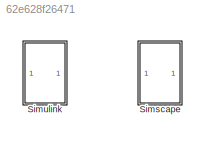
MODEL slx_62e628f26471
KIND model
CONFIG AbsTol = auto
CONFIG EnableMultiTasking = off
CONFIG FixedStep = auto
CONFIG MaxStep = 0.001
CONFIG MinStep = auto
CONFIG RelTol = 1e-3
CONFIG SampleTimeConstraint = Unconstrained
CONFIG SolverName = VariableStepAuto
CONFIG StartTime = 0.0
CONFIG StopTime = 10.0
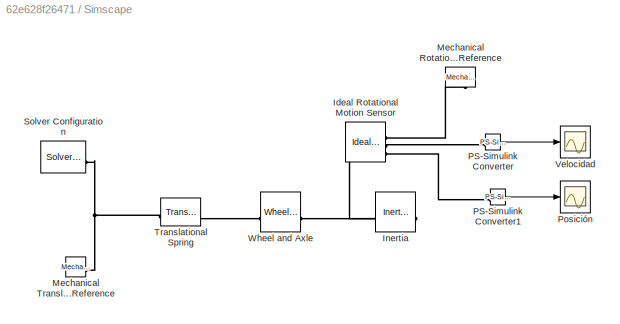
BLOCK [SubSystem] Simscape
BLOCK [Reference] Simscape/Ideal Rotational Motion Sensor  REF=fl_lib/Mechanical/Mechanical Sensors/Ideal Rotational
Motion Sensor
  SourceBlock = fl_lib/Mechanical/Mechanical Sensors/Ideal Rotational\nMotion Sensor
  SourceType = Ideal Rotational\nMotion Sensor
BLOCK [Reference] Simscape/Inertia  REF=fl_lib/Mechanical/Rotational Elements/Inertia
  NameLocation = top
  SourceBlock = fl_lib/Mechanical/Rotational Elements/Inertia
  SourceType = Inertia
BLOCK [Reference] Simscape/Mechanical Rotational Reference  REF=fl_lib/Mechanical/Rotational Elements/Mechanical
Rotational Reference
  NameLocation = left
  SourceBlock = fl_lib/Mechanical/Rotational Elements/Mechanical\nRotational Reference
  SourceType = Mechanical\nRotational Reference
BLOCK [Reference] Simscape/Mechanical Translational Reference  REF=fl_lib/Mechanical/Translational
Elements/Mechanical
Translational
Reference
  SourceBlock = fl_lib/Mechanical/Translational\nElements/Mechanical\nTranslational\nReference
  SourceType = Mechanical\nTranslational\nReference
BLOCK [Reference] Simscape/PS-Simulink Converter  REF=nesl_utility/PS-Simulink
Converter
  SourceBlock = nesl_utility/PS-Simulink\nConverter
  SourceType = PS-Simulink\nConverter
BLOCK [Reference] Simscape/PS-Simulink Converter1  REF=nesl_utility/PS-Simulink
Converter
  SourceBlock = nesl_utility/PS-Simulink\nConverter
  SourceType = PS-Simulink\nConverter
BLOCK [Scope] Simscape/Posición
  Floating = off
  NumInputPorts = 1
  ScopeSpecificationString = Simulink.scopes.TimeScopeBlockCfg('CurrentConfiguration', extmgr.ConfigurationSet(extmgr.Configuration('Core','General UI',true),extmgr.Configuration('Core','Source UI',true),extmgr.Configuration('Sources','WiredSimulink',true,'DataLoggingVariableName','ScopeData2'),extmgr.Configuration('Visuals','Time Domain',true,'SerializedDisplays',{struct('MinYLimReal','-0.96825','MaxYLimReal','0.96825','YLab...<+1381ch>
BLOCK [Reference] Simscape/Solver Configuration  REF=nesl_utility/Solver
Configuration
  SourceBlock = nesl_utility/Solver\nConfiguration
  SourceType = Solver\nConfiguration
BLOCK [Reference] Simscape/Translational Spring  REF=fl_lib/Mechanical/Translational
Elements/Translational Spring
  NameLocation = top
  SourceBlock = fl_lib/Mechanical/Translational\nElements/Translational Spring
  SourceType = Translational Spring
BLOCK [Scope] Simscape/Velocidad
  Floating = off
  NumInputPorts = 1
  ScopeSpecificationString = Simulink.scopes.TimeScopeBlockCfg('CurrentConfiguration', extmgr.ConfigurationSet(extmgr.Configuration('Core','General UI',true),extmgr.Configuration('Core','Source UI',true),extmgr.Configuration('Sources','WiredSimulink',true,'DataLoggingVariableName','ScopeData2'),extmgr.Configuration('Visuals','Time Domain',true,'SerializedDisplays',{struct('MinYLimReal','-2.5','MaxYLimReal','2.5','YLabelReal',...<+1356ch>
BLOCK [Reference] Simscape/Wheel and Axle  REF=fl_lib/Mechanical/Mechanisms/Wheel and Axle
  NameLocation = top
  SourceBlock = fl_lib/Mechanical/Mechanisms/Wheel and Axle
  SourceType = Wheel and Axle
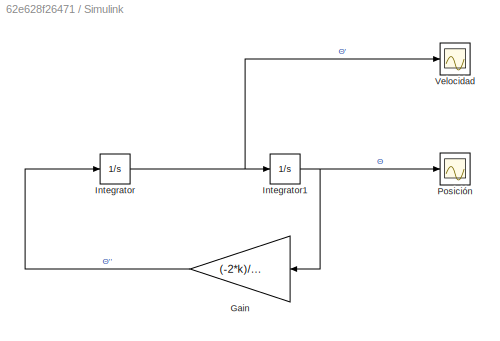
BLOCK [SubSystem] Simulink
BLOCK [Gain] Simulink/Gain
  Gain = (-2*k)/(3*m)
  NameLocation = top
BLOCK [Integrator] Simulink/Integrator
  InitialCondition = 2
BLOCK [Integrator] Simulink/Integrator1
BLOCK [Scope] Simulink/Posición 
  Floating = off
  NumInputPorts = 1
  ScopeSpecificationString = Simulink.scopes.TimeScopeBlockCfg('CurrentConfiguration', extmgr.ConfigurationSet(extmgr.Configuration('Core','General UI',true),extmgr.Configuration('Core','Source UI',true),extmgr.Configuration('Sources','WiredSimulink',true),extmgr.Configuration('Visuals','Time Domain',true,'SerializedDisplays',{struct('MinYLimReal','-0.96825','MaxYLimReal','0.96825','YLabelReal','','MinYLimMag','0.00000','MaxY...<+1321ch>
BLOCK [Scope] Simulink/Velocidad
  Floating = off
  NumInputPorts = 1
  ScopeSpecificationString = Simulink.scopes.TimeScopeBlockCfg('CurrentConfiguration', extmgr.ConfigurationSet(extmgr.Configuration('Core','General UI',true),extmgr.Configuration('Core','Source UI',true),extmgr.Configuration('Sources','WiredSimulink',true,'DataLoggingVariableName','ScopeData1'),extmgr.Configuration('Visuals','Time Domain',true,'SerializedDisplays',{struct('MinYLimReal','-2.5','MaxYLimReal','2.5','YLabelReal',...<+1338ch>
LINE Simscape/PS-Simulink Converter1:1 -> Simscape/Posición:1
LINE Simscape/PS-Simulink Converter:1 -> Simscape/Velocidad:1
LINE Simulink/Gain:1 -> Simulink/Integrator:1
NET Simulink/Integrator1:1 -> Simulink/Gain:1, Simulink/Posición :1
NET Simulink/Integrator:1 -> Simulink/Integrator1:1, Simulink/Velocidad:1
PNET net1: Simscape/Ideal Rotational Motion Sensor:LConn1 -- Simscape/Inertia:LConn1 -- Simscape/Wheel and Axle:LConn1
PLINE Simscape/Ideal Rotational Motion Sensor:RConn1 -- Simscape/Mechanical Rotational Reference:LConn1
PLINE Simscape/Ideal Rotational Motion Sensor:RConn2 -- Simscape/PS-Simulink Converter:LConn1
PLINE Simscape/Ideal Rotational Motion Sensor:RConn3 -- Simscape/PS-Simulink Converter1:LConn1
PNET net2: Simscape/Mechanical Translational Reference:LConn1 -- Simscape/Solver Configuration:RConn1 -- Simscape/Translational Spring:RConn1
PLINE Simscape/Translational Spring:LConn1 -- Simscape/Wheel and Axle:RConn1
note: NET lines group one-source signal fan-out (src -> all destinations, sorted); 1:1 wires keep LINE; PNET lines group multi-terminal physical nets as a canonical sorted terminal list (undirected conserving connections); 2-terminal nets keep the pairwise PLINE form
